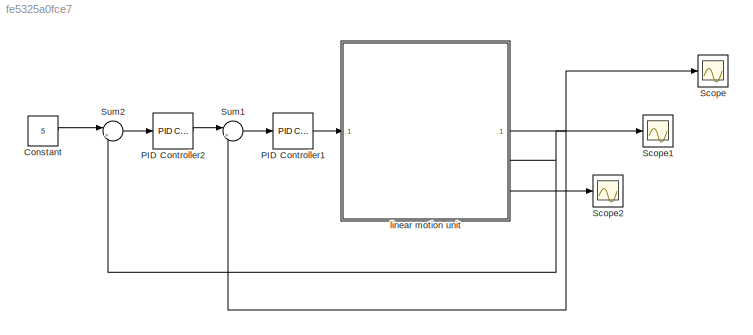
MODEL slx_fe5325a0fce7
KIND model
CONFIG AbsTol = auto
CONFIG EnableMultiTasking = off
CONFIG FixedStep = auto
CONFIG MaxStep = auto
CONFIG MinStep = auto
CONFIG RelTol = 1e-3
CONFIG SampleTimeConstraint = Unconstrained
CONFIG SolverName = FixedStepAuto
CONFIG StartTime = 0.0
CONFIG StopTime = 10
WORKSPACE source: mxarray member
WORKSPACE linear_servo_base_unit_spesession: sldodialogs.data.SessionData (value not decoded)
WORKSPACE session222: sldodialogs.data.SessionData (value not decoded)
BLOCK [Constant] Constant
  Value = 5
BLOCK [Reference] PID Controller1  REF=slpidlib/PID Controller
  LibrarySourceBlock = simulink/Continuous/PID Controller
  SourceBlock = slpidlib/PID Controller
  SourceType = PID 1dof
BLOCK [Reference] PID Controller2  REF=slpidlib/PID Controller
  LibrarySourceBlock = simulink/Continuous/PID Controller
  SourceBlock = slpidlib/PID Controller
  SourceType = PID 1dof
BLOCK [Scope] Scope
  Floating = off
  NumInputPorts = 1
  ScopeSpecificationString = Simulink.scopes.TimeScopeBlockCfg('CurrentConfiguration', extmgr.ConfigurationSet(extmgr.Configuration('Core','General UI',true),extmgr.Configuration('Core','Source UI',true),extmgr.Configuration('Sources','WiredSimulink',true,'DataLoggingVariableName','ScopeData1'),extmgr.Configuration('Visuals','Time Domain',true,'SerializedDisplays',{struct('MinYLimReal','-0.2957','MaxYLimReal','5.23079','YLabe...<+1476ch>
BLOCK [Scope] Scope1
  Floating = off
  NumInputPorts = 1
  ScopeSpecificationString = Simulink.scopes.TimeScopeBlockCfg('CurrentConfiguration', extmgr.ConfigurationSet(extmgr.Configuration('Core','General UI',true),extmgr.Configuration('Core','Source UI',true),extmgr.Configuration('Sources','WiredSimulink',true,'DataLoggingVariableName','ScopeData2'),extmgr.Configuration('Visuals','Time Domain',true,'SerializedDisplays',{struct('MinYLimReal','-0.64101','MaxYLimReal','5.7691','YLabe...<+1473ch>
BLOCK [Scope] Scope2
  Floating = off
  NumInputPorts = 1
  ScopeSpecificationString = Simulink.scopes.TimeScopeBlockCfg('CurrentConfiguration', extmgr.ConfigurationSet(extmgr.Configuration('Core','General UI',true),extmgr.Configuration('Core','Source UI',true),extmgr.Configuration('Sources','WiredSimulink',true,'DataLoggingVariableName','ScopeData3'),extmgr.Configuration('Visuals','Time Domain',true,'SerializedDisplays',{struct('MinYLimReal','-1143791602201927.75','MaxYLimReal','96...<+1491ch>
BLOCK [Sum] Sum1
  Inputs = |+-
BLOCK [Sum] Sum2
  Inputs = |+-
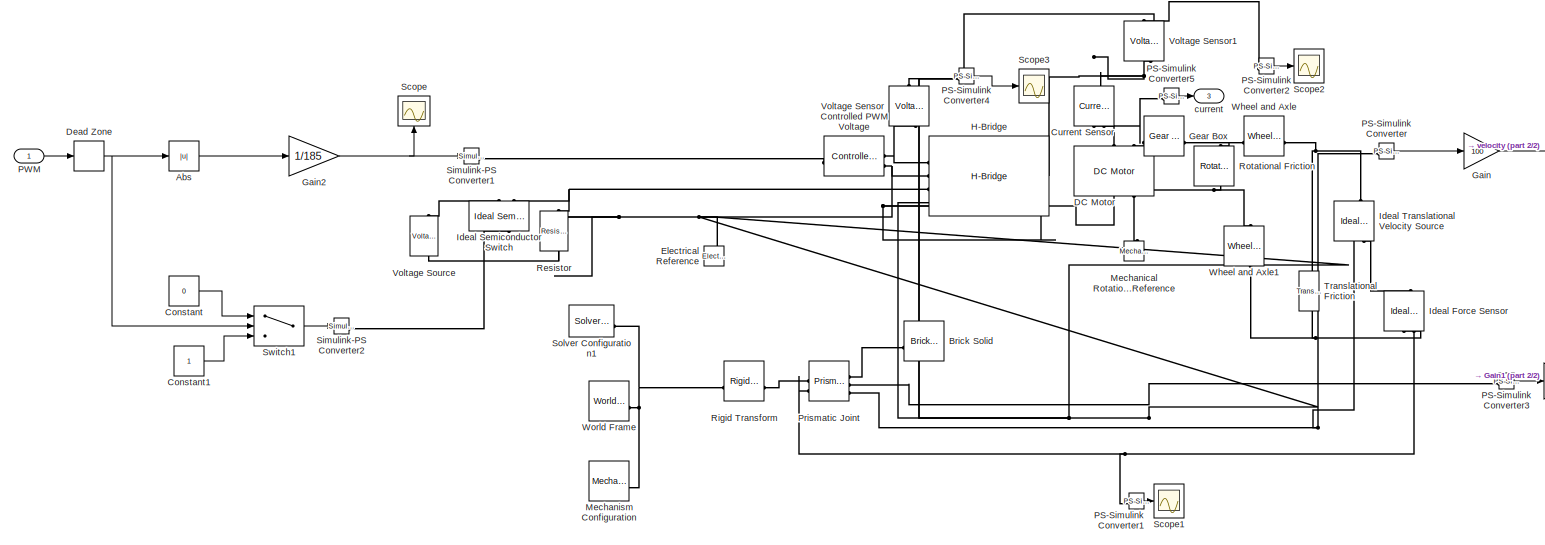
[diagram: linear motion unit - part 1/2, most of the canvas]
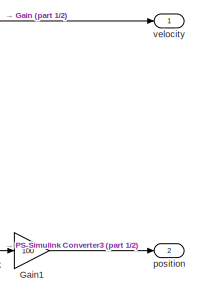
[diagram: linear motion unit - part 2/2, middle right region]
BLOCK [SubSystem] linear motion unit
BLOCK [Abs] linear motion unit/Abs
  SaturateOnIntegerOverflow = off
BLOCK [Reference] linear motion unit/Brick Solid  REF=sm_lib/Body Elements/Brick Solid
  NameLocation = top
  SourceBlock = sm_lib/Body Elements/Brick Solid
  SourceType = Brick Solid
BLOCK [Constant] linear motion unit/Constant
  Value = 0
BLOCK [Constant] linear motion unit/Constant1
BLOCK [Reference] linear motion unit/Controlled PWM Voltage  REF=ee_lib/Integrated Circuits/Controlled PWM
Voltage
  SourceBlock = ee_lib/Integrated Circuits/Controlled PWM\nVoltage
  SourceType = Controlled PWM\nVoltage
BLOCK [Reference] linear motion unit/Current Sensor  REF=fl_lib/Electrical/Electrical Sensors/Current Sensor
  NameLocation = left
  SourceBlock = fl_lib/Electrical/Electrical Sensors/Current Sensor
  SourceType = Current Sensor
BLOCK [Reference] linear motion unit/DC Motor  REF=ee_lib/Electromechanical/Brushed Motors/DC Motor
  NameLocation = right
  SourceBlock = ee_lib/Electromechanical/Brushed Motors/DC Motor
  SourceType = DC Motor
BLOCK [DeadZone] linear motion unit/Dead Zone
  LowerValue = -70
  UpperValue = 70
BLOCK [Reference] linear motion unit/Electrical Reference  REF=fl_lib/Electrical/Electrical Elements/Electrical Reference
  NameLocation = right
  SourceBlock = fl_lib/Electrical/Electrical Elements/Electrical Reference
  SourceType = Electrical Reference
BLOCK [Gain] linear motion unit/Gain
  Gain = 100
BLOCK [Gain] linear motion unit/Gain1
  Gain = 100
BLOCK [Gain] linear motion unit/Gain2
  Gain = 1/185
BLOCK [Reference] linear motion unit/Gear Box  REF=fl_lib/Mechanical/Mechanisms/Gear Box
  SourceBlock = fl_lib/Mechanical/Mechanisms/Gear Box
  SourceType = Gear Box
BLOCK [Reference] linear motion unit/H-Bridge  REF=ee_lib/Semiconductors &
Converters/Converters/H-Bridge
  SourceBlock = ee_lib/Semiconductors &\nConverters/Converters/H-Bridge
  SourceType = H-Bridge
BLOCK [Reference] linear motion unit/Ideal Force Sensor  REF=fl_lib/Mechanical/Mechanical Sensors/Ideal Force Sensor
  NameLocation = left
  SourceBlock = fl_lib/Mechanical/Mechanical Sensors/Ideal Force Sensor
  SourceType = Ideal Force Sensor
BLOCK [Reference] linear motion unit/Ideal Semiconductor Switch  REF=ee_lib/Semiconductors &
Converters/Ideal Semiconductor
Switch
  NameLocation = right
  SourceBlock = ee_lib/Semiconductors &\nConverters/Ideal Semiconductor\nSwitch
  SourceType = Ideal Semiconductor\nSwitch
BLOCK [Reference] linear motion unit/Ideal Translational Velocity Source  REF=fl_lib/Mechanical/Mechanical Sources/Ideal Translational
Velocity Source
  NameLocation = right
  SourceBlock = fl_lib/Mechanical/Mechanical Sources/Ideal Translational\nVelocity Source
  SourceType = Ideal Translational\nVelocity Source
BLOCK [Reference] linear motion unit/Mechanical Rotational Reference  REF=fl_lib/Mechanical/Rotational Elements/Mechanical
Rotational Reference
  NameLocation = right
  SourceBlock = fl_lib/Mechanical/Rotational Elements/Mechanical\nRotational Reference
  SourceType = Mechanical\nRotational Reference
BLOCK [Reference] linear motion unit/Mechanism Configuration  REF=sm_lib/Utilities/Mechanism
Configuration
  SourceBlock = sm_lib/Utilities/Mechanism\nConfiguration
  SourceType = Mechanism\nConfiguration
BLOCK [Reference] linear motion unit/PS-Simulink Converter  REF=nesl_utility/PS-Simulink
Converter
  SourceBlock = nesl_utility/PS-Simulink\nConverter
  SourceType = PS-Simulink\nConverter
BLOCK [Reference] linear motion unit/PS-Simulink Converter1  REF=nesl_utility/PS-Simulink
Converter
  SourceBlock = nesl_utility/PS-Simulink\nConverter
  SourceType = PS-Simulink\nConverter
BLOCK [Reference] linear motion unit/PS-Simulink Converter2  REF=nesl_utility/PS-Simulink
Converter
  SourceBlock = nesl_utility/PS-Simulink\nConverter
  SourceType = PS-Simulink\nConverter
BLOCK [Reference] linear motion unit/PS-Simulink Converter3  REF=nesl_utility/PS-Simulink
Converter
  SourceBlock = nesl_utility/PS-Simulink\nConverter
  SourceType = PS-Simulink\nConverter
BLOCK [Reference] linear motion unit/PS-Simulink Converter4  REF=nesl_utility/PS-Simulink
Converter
  SourceBlock = nesl_utility/PS-Simulink\nConverter
  SourceType = PS-Simulink\nConverter
BLOCK [Reference] linear motion unit/PS-Simulink Converter5  REF=nesl_utility/PS-Simulink
Converter
  SourceBlock = nesl_utility/PS-Simulink\nConverter
  SourceType = PS-Simulink\nConverter
BLOCK [Inport] linear motion unit/PWM
BLOCK [Reference] linear motion unit/Prismatic Joint  REF=sm_lib/Joints/Prismatic
Joint
  SourceBlock = sm_lib/Joints/Prismatic\nJoint
  SourceType = Prismatic\nJoint
BLOCK [Reference] linear motion unit/Resistor  REF=fl_lib/Electrical/Electrical Elements/Resistor
  NameLocation = left
  SourceBlock = fl_lib/Electrical/Electrical Elements/Resistor
  SourceType = Resistor
BLOCK [Reference] linear motion unit/Rigid Transform  REF=sm_lib/Frames and
Transforms/Rigid
Transform
  SourceBlock = sm_lib/Frames and\nTransforms/Rigid\nTransform
  SourceType = Rigid\nTransform
BLOCK [Reference] linear motion unit/Rotational Friction  REF=fl_lib/Mechanical/Rotational Elements/Rotational Friction
  NameLocation = left
  SourceBlock = fl_lib/Mechanical/Rotational Elements/Rotational Friction
  SourceType = Rotational Friction
BLOCK [Scope] linear motion unit/Scope
  Floating = off
  NameLocation = right
  NumInputPorts = 1
  ScopeSpecificationString = Simulink.scopes.TimeScopeBlockCfg('CurrentConfiguration', extmgr.ConfigurationSet(extmgr.Configuration('Core','General UI',true),extmgr.Configuration('Core','Source UI',true),extmgr.Configuration('Sources','WiredSimulink',true,'DataLoggingVariableName','ScopeData2'),extmgr.Configuration('Visuals','Time Domain',true,'SerializedDisplays',{struct('MinYLimReal','-0.125','MaxYLimReal','1.125','YLabelRe...<+1377ch>
BLOCK [Scope] linear motion unit/Scope1
  Floating = off
  NumInputPorts = 1
  ScopeSpecificationString = Simulink.scopes.TimeScopeBlockCfg('CurrentConfiguration', extmgr.ConfigurationSet(extmgr.Configuration('Core','General UI',true),extmgr.Configuration('Core','Source UI',true),extmgr.Configuration('Sources','WiredSimulink',true,'DataLoggingVariableName','ScopeData1'),extmgr.Configuration('Visuals','Time Domain',true,'SerializedDisplays',{struct('MinYLimReal','-159.99696','MaxYLimReal','125.8354','Y...<+1544ch>
BLOCK [Scope] linear motion unit/Scope2
  Floating = off
  NumInputPorts = 1
  ScopeSpecificationString = Simulink.scopes.TimeScopeBlockCfg('CurrentConfiguration', extmgr.ConfigurationSet(extmgr.Configuration('Core','General UI',true),extmgr.Configuration('Core','Source UI',true),extmgr.Configuration('Sources','WiredSimulink',true,'DataLoggingVariableName','ScopeData2'),extmgr.Configuration('Visuals','Time Domain',true,'SerializedDisplays',{struct('MinYLimReal','11.69609','MaxYLimReal','11.73515','YLa...<+1531ch>
BLOCK [Scope] linear motion unit/Scope3
  Floating = off
  NumInputPorts = 1
  ScopeSpecificationString = Simulink.scopes.TimeScopeBlockCfg('CurrentConfiguration', extmgr.ConfigurationSet(extmgr.Configuration('Core','General UI',true),extmgr.Configuration('Core','Source UI',true),extmgr.Configuration('Sources','WiredSimulink',true,'DataLoggingVariableName','ScopeData4'),extmgr.Configuration('Visuals','Time Domain',true,'SerializedDisplays',{struct('MinYLimReal','-0.625','MaxYLimReal','5.625','YLabelRe...<+1513ch>
BLOCK [Reference] linear motion unit/Simulink-PS Converter1  REF=nesl_utility/Simulink-PS
Converter
  SourceBlock = nesl_utility/Simulink-PS\nConverter
  SourceType = Simulink-PS\nConverter
BLOCK [Reference] linear motion unit/Simulink-PS Converter2  REF=nesl_utility/Simulink-PS
Converter
  SourceBlock = nesl_utility/Simulink-PS\nConverter
  SourceType = Simulink-PS\nConverter
BLOCK [Reference] linear motion unit/Solver Configuration1  REF=nesl_utility/Solver
Configuration
  SourceBlock = nesl_utility/Solver\nConfiguration
  SourceType = Solver\nConfiguration
BLOCK [Switch] linear motion unit/Switch1
  Criteria = u2 > Threshold
  InputSameDT = off
  SaturateOnIntegerOverflow = off
BLOCK [Reference] linear motion unit/Translational Friction  REF=fl_lib/Mechanical/Translational
Elements/Translational
Friction
  NameLocation = left
  SourceBlock = fl_lib/Mechanical/Translational\nElements/Translational\nFriction
  SourceType = Translational\nFriction
BLOCK [Reference] linear motion unit/Voltage Sensor  REF=fl_lib/Electrical/Electrical Sensors/Voltage Sensor
  NameLocation = right
  SourceBlock = fl_lib/Electrical/Electrical Sensors/Voltage Sensor
  SourceType = Voltage Sensor
BLOCK [Reference] linear motion unit/Voltage Sensor1  REF=fl_lib/Electrical/Electrical Sensors/Voltage Sensor
  NameLocation = right
  SourceBlock = fl_lib/Electrical/Electrical Sensors/Voltage Sensor
  SourceType = Voltage Sensor
BLOCK [Reference] linear motion unit/Voltage Source  REF=ee_lib/Sources/Voltage Source
  NameLocation = right
  SourceBlock = ee_lib/Sources/Voltage Source
  SourceType = Voltage Source
BLOCK [Reference] linear motion unit/Wheel and Axle  REF=fl_lib/Mechanical/Mechanisms/Wheel and Axle
  SourceBlock = fl_lib/Mechanical/Mechanisms/Wheel and Axle
  SourceType = Wheel and Axle
BLOCK [Reference] linear motion unit/Wheel and Axle1  REF=fl_lib/Mechanical/Mechanisms/Wheel and Axle
  NameLocation = left
  SourceBlock = fl_lib/Mechanical/Mechanisms/Wheel and Axle
  SourceType = Wheel and Axle
BLOCK [Reference] linear motion unit/World Frame  REF=sm_lib/Frames and
Transforms/World Frame
  SourceBlock = sm_lib/Frames and\nTransforms/World Frame
  SourceType = World Frame
BLOCK [Outport] linear motion unit/current
  Port = 3
BLOCK [Outport] linear motion unit/position
  Port = 2
BLOCK [Outport] linear motion unit/velocity
LINE Constant:1 -> Sum2:1
LINE PID Controller1:1 -> linear motion unit:1
LINE PID Controller2:1 -> Sum1:1
LINE Sum1:1 -> PID Controller1:1
LINE Sum2:1 -> PID Controller2:1
LINE linear motion unit/Abs:1 -> linear motion unit/Gain2:1
LINE linear motion unit/Constant1:1 -> linear motion unit/Switch1:3
LINE linear motion unit/Constant:1 -> linear motion unit/Switch1:1
NET linear motion unit/Dead Zone:1 -> linear motion unit/Abs:1, linear motion unit/Switch1:2
LINE linear motion unit/Gain1:1 -> linear motion unit/position:1
NET linear motion unit/Gain2:1 -> linear motion unit/Scope:1, linear motion unit/Simulink-PS Converter1:1
LINE linear motion unit/Gain:1 -> linear motion unit/velocity:1
LINE linear motion unit/PS-Simulink Converter1:1 -> linear motion unit/Scope1:1
LINE linear motion unit/PS-Simulink Converter2:1 -> linear motion unit/Scope2:1
LINE linear motion unit/PS-Simulink Converter3:1 -> linear motion unit/Gain1:1
LINE linear motion unit/PS-Simulink Converter4:1 -> linear motion unit/Scope3:1
LINE linear motion unit/PS-Simulink Converter5:1 -> linear motion unit/current:1
LINE linear motion unit/PS-Simulink Converter:1 -> linear motion unit/Gain:1
LINE linear motion unit/PWM:1 -> linear motion unit/Dead Zone:1
LINE linear motion unit/Switch1:1 -> linear motion unit/Simulink-PS Converter2:1
NET linear motion unit:1 -> Scope:1, Sum1:2
NET linear motion unit:2 -> Scope1:1, Sum2:2
LINE linear motion unit:3 -> Scope2:1
PLINE linear motion unit/Brick Solid:RConn1 -- linear motion unit/Prismatic Joint:RConn1
PLINE linear motion unit/Controlled PWM Voltage:LConn1 -- linear motion unit/Simulink-PS Converter1:RConn1
PNET net1: linear motion unit/Controlled PWM Voltage:RConn1 -- linear motion unit/H-Bridge:LConn1 -- linear motion unit/Voltage Sensor:LConn1
PNET net2: linear motion unit/Controlled PWM Voltage:RConn2 -- linear motion unit/DC Motor:RConn1 -- linear motion unit/Electrical Reference:LConn1 -- linear motion unit/H-Bridge:LConn2 -- linear motion unit/H-Bridge:LConn4 -- linear motion unit/H-Bridge:RConn2 -- linear motion unit/Resistor:RConn1 -- linear motion unit/Voltage Sensor1:RConn2 -- linear motion unit/Voltage Sensor:RConn2 -- linear motion unit/Voltage Source:RConn1
PNET net3: linear motion unit/Current Sensor:LConn1 -- linear motion unit/H-Bridge:RConn1 -- linear motion unit/Voltage Sensor1:LConn1
PLINE linear motion unit/Current Sensor:RConn1 -- linear motion unit/PS-Simulink Converter5:LConn1
PLINE linear motion unit/Current Sensor:RConn2 -- linear motion unit/DC Motor:LConn1
PLINE linear motion unit/DC Motor:LConn2 -- linear motion unit/Gear Box:LConn1
PNET net4: linear motion unit/DC Motor:RConn2 -- linear motion unit/Mechanical Rotational Reference:LConn1 -- linear motion unit/Rotational Friction:RConn1 -- linear motion unit/Wheel and Axle1:LConn1
PNET net5: linear motion unit/Gear Box:RConn1 -- linear motion unit/Rotational Friction:LConn1 -- linear motion unit/Wheel and Axle:LConn1
PNET net6: linear motion unit/H-Bridge:LConn3 -- linear motion unit/Ideal Semiconductor Switch:RConn2 -- linear motion unit/Resistor:LConn1
PLINE linear motion unit/Ideal Force Sensor:LConn1 -- linear motion unit/Ideal Translational Velocity Source:RConn2
PNET net7: linear motion unit/Ideal Force Sensor:RConn1 -- linear motion unit/Translational Friction:RConn1 -- linear motion unit/Wheel and Axle1:RConn1
PNET net8: linear motion unit/Ideal Force Sensor:RConn2 -- linear motion unit/PS-Simulink Converter1:LConn1 -- linear motion unit/Prismatic Joint:LConn2
PLINE linear motion unit/Ideal Semiconductor Switch:LConn1 -- linear motion unit/Simulink-PS Converter2:RConn1
PLINE linear motion unit/Ideal Semiconductor Switch:RConn1 -- linear motion unit/Voltage Source:LConn1
PNET net9: linear motion unit/Ideal Translational Velocity Source:LConn1 -- linear motion unit/Translational Friction:LConn1 -- linear motion unit/Wheel and Axle:RConn1
PNET net10: linear motion unit/Ideal Translational Velocity Source:RConn1 -- linear motion unit/PS-Simulink Converter:LConn1 -- linear motion unit/Prismatic Joint:RConn3
PNET net11: linear motion unit/Mechanism Configuration:RConn1 -- linear motion unit/Rigid Transform:LConn1 -- linear motion unit/Solver Configuration1:RConn1 -- linear motion unit/World Frame:RConn1
PLINE linear motion unit/PS-Simulink Converter2:LConn1 -- linear motion unit/Voltage Sensor1:RConn1
PLINE linear motion unit/PS-Simulink Converter3:LConn1 -- linear motion unit/Prismatic Joint:RConn2
PLINE linear motion unit/PS-Simulink Converter4:LConn1 -- linear motion unit/Voltage Sensor:RConn1
PLINE linear motion unit/Prismatic Joint:LConn1 -- linear motion unit/Rigid Transform:RConn1
note: NET lines group one-source signal fan-out (src -> all destinations, sorted); 1:1 wires keep LINE; PNET lines group multi-terminal physical nets as a canonical sorted terminal list (undirected conserving connections); 2-terminal nets keep the pairwise PLINE form
